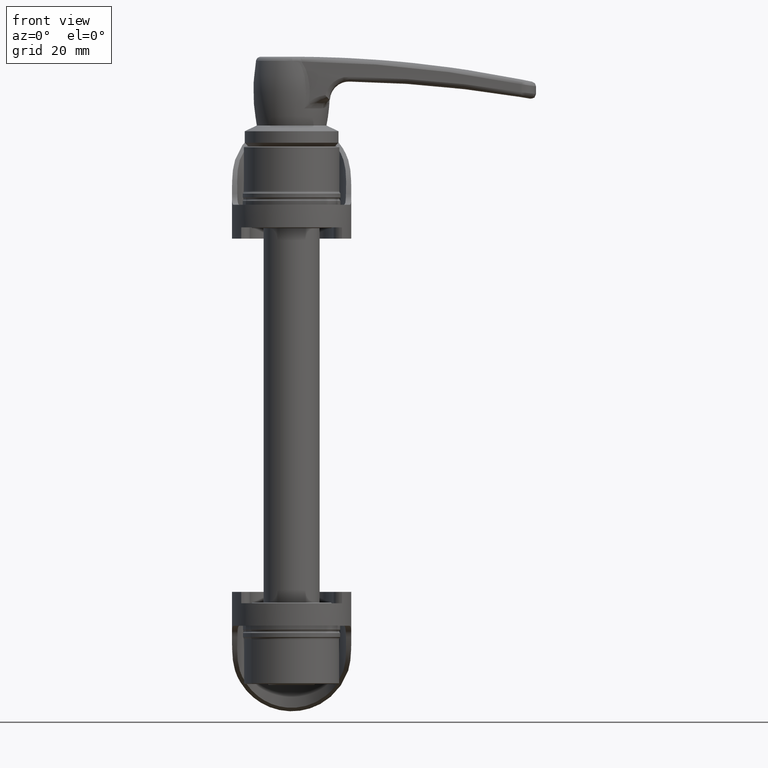
[diagram: clean part render]
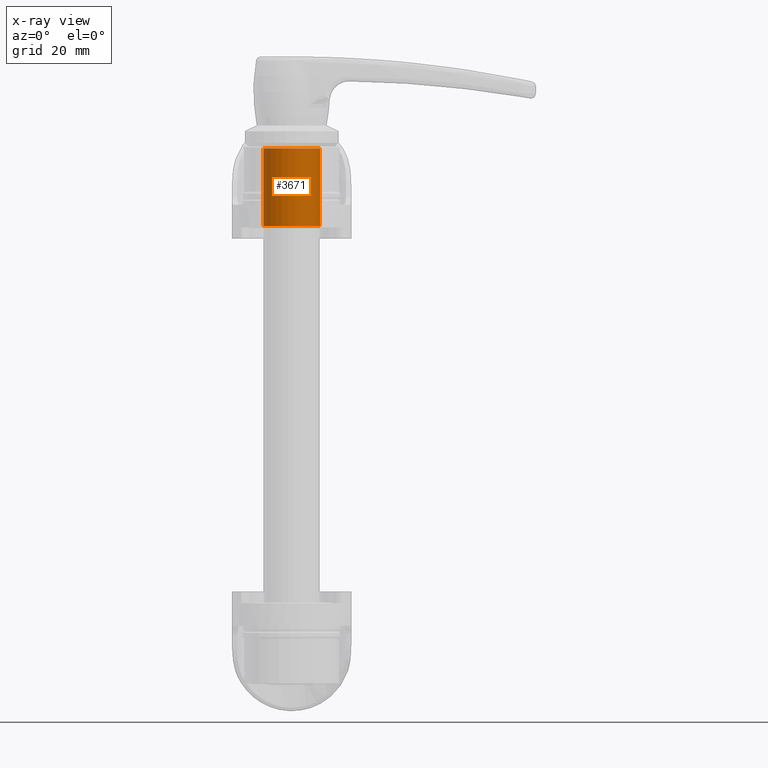
[diagram: x-ray — body ghosted, one internal face saturated and labeled with its STEP entity id]
A machine part, front view, then the same camera in x-ray: the body is ghosted and one INTERNAL B-rep face — a face not visible from any outside direction — is saturated and labeled: STEP entity #3671.
In plain terms, the highlighted cylindrical surface (edge-blend (fillet) strip) has radius 7.5311 mm, axis along (-0, 0, -1).
Its self-contained STEP definition (entity closure, byte-faithful):
#76 = VERTEX_POINT ( 'NONE', #1321 ) ;
#544 = AXIS2_PLACEMENT_3D ( 'NONE', #2295, #6865, #2940 ) ;
#658 = CARTESIAN_POINT ( 'NONE',  ( 0.5000000000000013300, 0.0000000000000000000, 7.531099999999999500 ) ) ;
#788 = VERTEX_POINT ( 'NONE', #658 ) ;
#1086 = VERTEX_POINT ( 'NONE', #4270 ) ;
#1163 = DIRECTION ( 'NONE',  ( -1.000000000000000000, -0.0000000000000000000, -0.0000000000000000000 ) ) ;
#1200 = DIRECTION ( 'NONE',  ( -1.000000000000000000, -0.0000000000000000000, -0.0000000000000000000 ) ) ;
#1321 = CARTESIAN_POINT ( 'NONE',  ( 0.5000000000000013300, 9.222937509058631400E-016, -7.531099999999999500 ) ) ;
#1562 = AXIS2_PLACEMENT_3D ( 'NONE', #5738, #1862, #6405 ) ;
#1798 = EDGE_LOOP ( 'NONE', ( #4422, #6295, #7901, #7854 ) ) ;
#1862 = DIRECTION ( 'NONE',  ( 1.000000000000000000, -0.0000000000000000000, -0.0000000000000000000 ) ) ;
#2295 = CARTESIAN_POINT ( 'NONE',  ( 0.5000000000000013300, 0.0000000000000000000, 0.0000000000000000000 ) ) ;
#2418 = CYLINDRICAL_SURFACE ( 'NONE', #5250, 7.531099999999999500 ) ;
#2440 = CIRCLE ( 'NONE', #1562, 7.531099999999999500 ) ;
#2520 = CIRCLE ( 'NONE', #544, 7.531099999999999500 ) ;
#2635 = VECTOR ( 'NONE', #1200, 1000.000000000000000 ) ;
#2750 = LINE ( 'NONE', #8269, #7944 ) ;
#2769 = VERTEX_POINT ( 'NONE', #4212 ) ;
#2940 = DIRECTION ( 'NONE',  ( 0.0000000000000000000, 0.0000000000000000000, -1.000000000000000000 ) ) ;
#2943 = DIRECTION ( 'NONE',  ( -1.000000000000000000, -0.0000000000000000000, -0.0000000000000000000 ) ) ;
#3043 = LINE ( 'NONE', #5085, #2635 ) ;
#3594 = DIRECTION ( 'NONE',  ( 0.0000000000000000000, 0.0000000000000000000, 1.000000000000000000 ) ) ;
#3671 = ADVANCED_FACE ( 'NONE', ( #7615 ), #2418, .F. ) ;
#4212 = CARTESIAN_POINT ( 'NONE',  ( 21.19999999999999900, 9.222937509058631400E-016, -7.531099999999999500 ) ) ;
#4253 = CARTESIAN_POINT ( 'NONE',  ( 0.0000000000000000000, 0.0000000000000000000, 0.0000000000000000000 ) ) ;
#4270 = CARTESIAN_POINT ( 'NONE',  ( 21.19999999999999900, 0.0000000000000000000, 7.531099999999999500 ) ) ;
#4422 = ORIENTED_EDGE ( 'NONE', *, *, #5928, .T. ) ;
#5085 = CARTESIAN_POINT ( 'NONE',  ( 0.0000000000000000000, 0.0000000000000000000, 7.531099999999999500 ) ) ;
#5250 = AXIS2_PLACEMENT_3D ( 'NONE', #4253, #2943, #3594 ) ;
#5532 = EDGE_CURVE ( 'NONE', #2769, #76, #2750, .T. ) ;
#5738 = CARTESIAN_POINT ( 'NONE',  ( 21.19999999999999900, 0.0000000000000000000, 0.0000000000000000000 ) ) ;
#5928 = EDGE_CURVE ( 'NONE', #1086, #2769, #2440, .T. ) ;
#6295 = ORIENTED_EDGE ( 'NONE', *, *, #5532, .T. ) ;
#6405 = DIRECTION ( 'NONE',  ( 0.0000000000000000000, 0.0000000000000000000, 1.000000000000000000 ) ) ;
#6865 = DIRECTION ( 'NONE',  ( -1.000000000000000000, 0.0000000000000000000, 0.0000000000000000000 ) ) ;
#7138 = EDGE_CURVE ( 'NONE', #1086, #788, #3043, .T. ) ;
#7615 = FACE_OUTER_BOUND ( 'NONE', #1798, .T. ) ;
#7854 = ORIENTED_EDGE ( 'NONE', *, *, #7138, .F. ) ;
#7901 = ORIENTED_EDGE ( 'NONE', *, *, #8218, .T. ) ;
#7944 = VECTOR ( 'NONE', #1163, 1000.000000000000000 ) ;
#8218 = EDGE_CURVE ( 'NONE', #76, #788, #2520, .T. ) ;
#8269 = CARTESIAN_POINT ( 'NONE',  ( 0.0000000000000000000, 9.222937509058631400E-016, -7.531099999999999500 ) ) ;